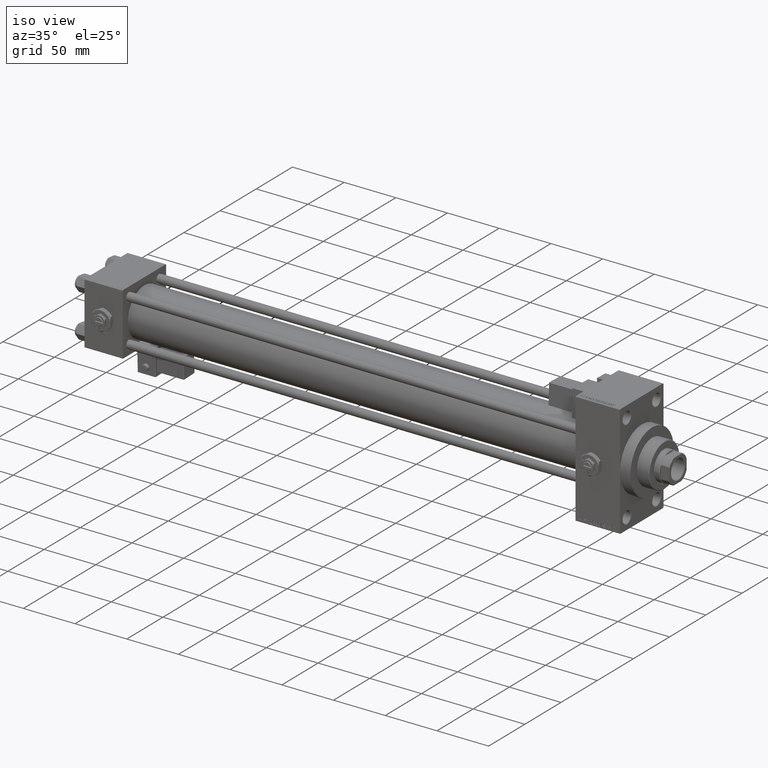
[diagram: clean part render]
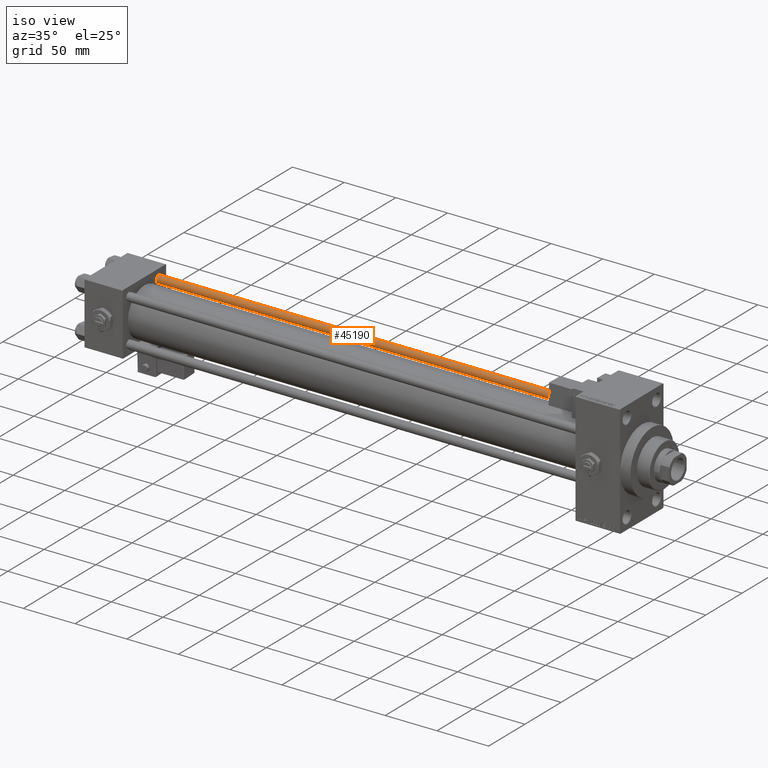
[diagram: same view with one face highlighted and labeled with its STEP entity id]
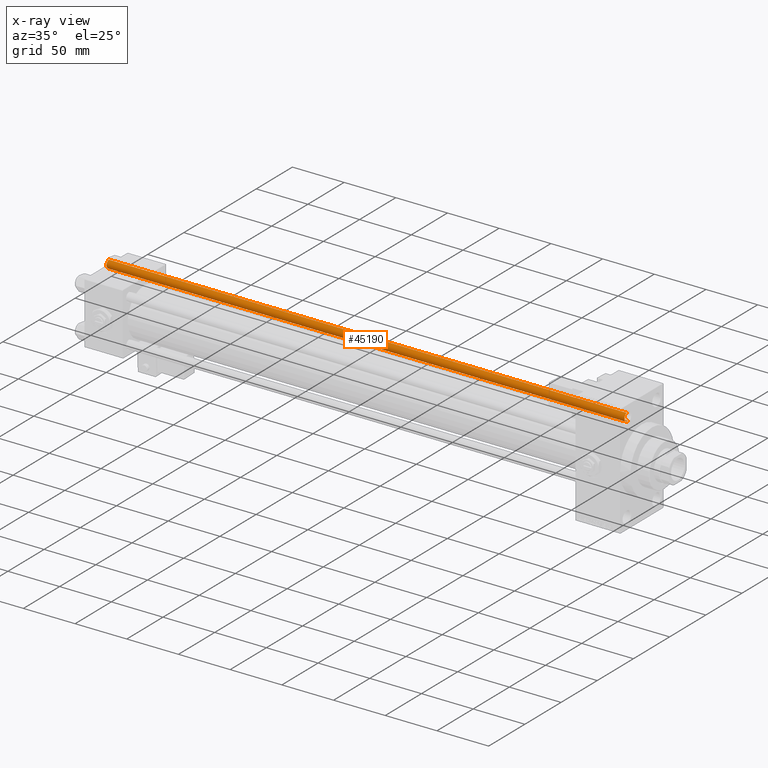
[diagram: x-ray of the same camera — body ghosted, the highlighted face saturated]
A machine part, iso view. The second image highlights one B-rep face of the part: STEP entity #45190.
The next image is the same camera in x-ray: the body ghosted, the highlighted face saturated — about 0% of this face is hidden behind the body in this view.
In plain terms, the highlighted cylindrical surface (edge-blend (fillet) strip) has radius 4 mm, axis along (-1, -0, 0).
Its self-contained STEP definition (entity closure, byte-faithful):
#2565 = CARTESIAN_POINT ( 'NONE',  ( -4.000000000000000000, 0.000000000000000000, 502.0000000000000000 ) ) ;
#3008 = CIRCLE ( 'NONE', #18799, 4.000000000000000000 ) ;
#4051 = AXIS2_PLACEMENT_3D ( 'NONE', #14038, #9624, #25510 ) ;
#5719 = DIRECTION ( 'NONE',  ( 1.000000000000000000, 0.000000000000000000, 0.000000000000000000 ) ) ;
#6558 = DIRECTION ( 'NONE',  ( -0.000000000000000000, -0.000000000000000000, 1.000000000000000000 ) ) ;
#8426 = ORIENTED_EDGE ( 'NONE', *, *, #20638, .T. ) ;
#9362 = CARTESIAN_POINT ( 'NONE',  ( -4.000000000000000000, 0.000000000000000000, 501.4999999999999432 ) ) ;
#9611 = VECTOR ( 'NONE', #34834, 1000.000000000000000 ) ;
#9624 = DIRECTION ( 'NONE',  ( -0.000000000000000000, -0.000000000000000000, -1.000000000000000000 ) ) ;
#11112 = CARTESIAN_POINT ( 'NONE',  ( 4.000000000000000000, 4.898587196589412829E-16, 502.0000000000000000 ) ) ;
#14038 = CARTESIAN_POINT ( 'NONE',  ( 0.000000000000000000, 0.000000000000000000, 502.0000000000000000 ) ) ;
#14286 = LINE ( 'NONE', #2565, #9611 ) ;
#15815 = CARTESIAN_POINT ( 'NONE',  ( 4.000000000000000000, 4.898587196589412829E-16, 0.4999999999999449329 ) ) ;
#15893 = ORIENTED_EDGE ( 'NONE', *, *, #28870, .F. ) ;
#16687 = EDGE_CURVE ( 'NONE', #35797, #31022, #14286, .T. ) ;
#18799 = AXIS2_PLACEMENT_3D ( 'NONE', #21849, #37729, #5719 ) ;
#18882 = CIRCLE ( 'NONE', #48022, 4.000000000000000000 ) ;
#20638 = EDGE_CURVE ( 'NONE', #31022, #48396, #18882, .T. ) ;
#21849 = CARTESIAN_POINT ( 'NONE',  ( 0.000000000000000000, 0.000000000000000000, 501.4999999999999432 ) ) ;
#22942 = CARTESIAN_POINT ( 'NONE',  ( 0.000000000000000000, 0.000000000000000000, 0.4999999999999449329 ) ) ;
#25510 = DIRECTION ( 'NONE',  ( -1.000000000000000000, 0.000000000000000000, 0.000000000000000000 ) ) ;
#27809 = ORIENTED_EDGE ( 'NONE', *, *, #16687, .T. ) ;
#28479 = EDGE_LOOP ( 'NONE', ( #15893, #30782, #27809, #8426 ) ) ;
#28870 = EDGE_CURVE ( 'NONE', #43050, #48396, #35064, .T. ) ;
#30782 = ORIENTED_EDGE ( 'NONE', *, *, #36640, .T. ) ;
#31022 = VERTEX_POINT ( 'NONE', #41632 ) ;
#34834 = DIRECTION ( 'NONE',  ( -0.000000000000000000, -0.000000000000000000, -1.000000000000000000 ) ) ;
#35053 = CYLINDRICAL_SURFACE ( 'NONE', #4051, 4.000000000000000000 ) ;
#35064 = LINE ( 'NONE', #11112, #47375 ) ;
#35797 = VERTEX_POINT ( 'NONE', #9362 ) ;
#36640 = EDGE_CURVE ( 'NONE', #43050, #35797, #3008, .T. ) ;
#37466 = CARTESIAN_POINT ( 'NONE',  ( 4.000000000000000000, 4.898587196589412829E-16, 501.4999999999999432 ) ) ;
#37729 = DIRECTION ( 'NONE',  ( 0.000000000000000000, 0.000000000000000000, -1.000000000000000000 ) ) ;
#41401 = FACE_OUTER_BOUND ( 'NONE', #28479, .T. ) ;
#41632 = CARTESIAN_POINT ( 'NONE',  ( -4.000000000000000000, 0.000000000000000000, 0.4999999999999449329 ) ) ;
#43050 = VERTEX_POINT ( 'NONE', #37466 ) ;
#45190 = ADVANCED_FACE ( 'NONE', ( #41401 ), #35053, .T. ) ;
#46527 = DIRECTION ( 'NONE',  ( -0.000000000000000000, -0.000000000000000000, -1.000000000000000000 ) ) ;
#47163 = DIRECTION ( 'NONE',  ( 1.000000000000000000, 0.000000000000000000, 0.000000000000000000 ) ) ;
#47375 = VECTOR ( 'NONE', #46527, 1000.000000000000000 ) ;
#48022 = AXIS2_PLACEMENT_3D ( 'NONE', #22942, #6558, #47163 ) ;
#48396 = VERTEX_POINT ( 'NONE', #15815 ) ;